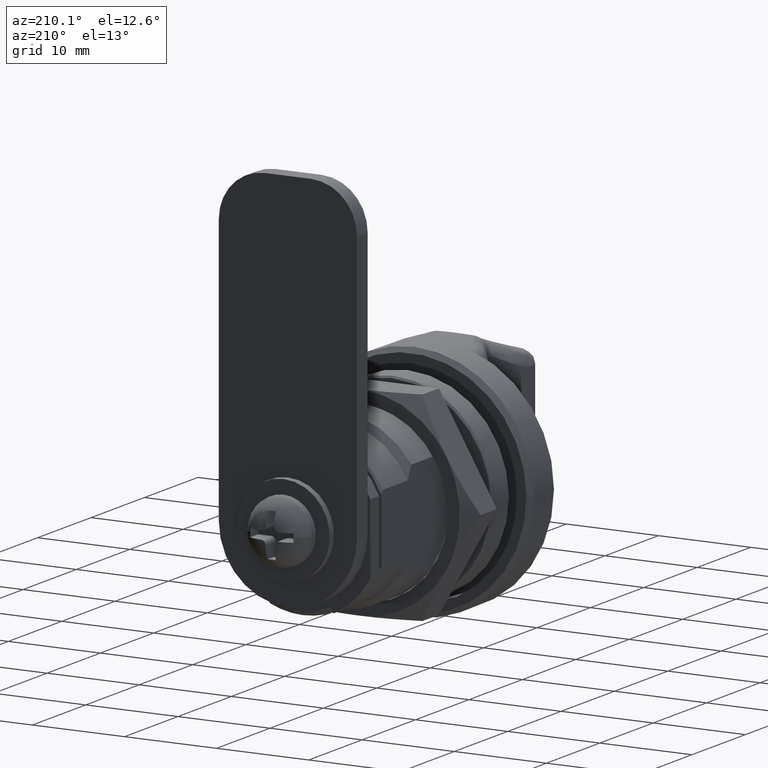
[diagram: clean part render]
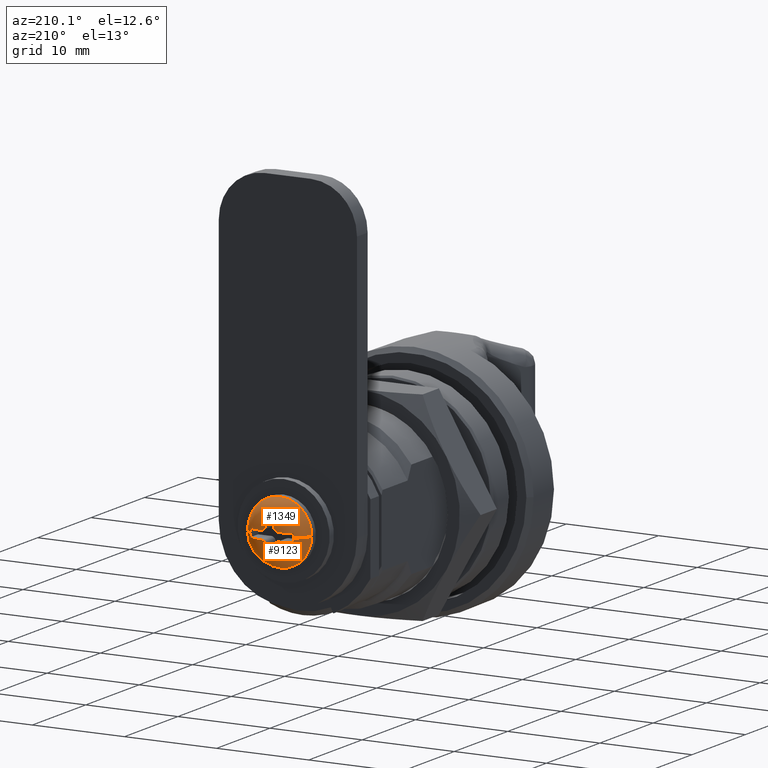
[diagram: same view with one multi-face feature highlighted, each face labeled with its STEP entity id]
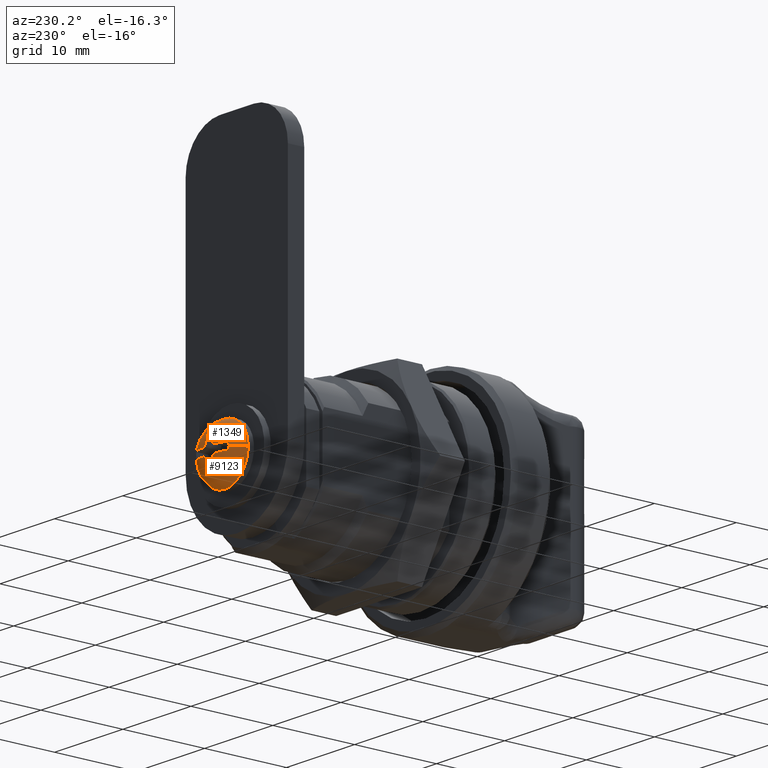
[diagram: same view with one multi-face feature highlighted, each face labeled with its STEP entity id]
A machine part, auxiliary view. The highlighted faces form ONE feature: a constant-radius fillet chain: 2 tangent blend faces with common blend radius 2.5 mm. The faces share edges in the B-rep.
A second angle (auxiliary view) of the same feature is appended — it is thin or edge-on in the first view.
Their STEP definitions:
[1] entity #9123 (Torus):
#134 = CARTESIAN_POINT ( 'NONE',  ( 1.198544420939724200, 0.4500000000000000700, 0.0003102923564185502600 ) ) ;
#171 = DIRECTION ( 'NONE',  ( 1.224646799147353000E-016, 1.000000000000000000, 0.0000000000000000000 ) ) ;
#323 = CARTESIAN_POINT ( 'NONE',  ( 0.6890411604601945900, 0.5038517649942705300, -0.0004133104139399162100 ) ) ;
#569 = VERTEX_POINT ( 'NONE', #1365 ) ;
#648 = CARTESIAN_POINT ( 'NONE',  ( -3.275548166263182900E-016, -2.350000000000000100, -0.3875072639931792000 ) ) ;
#666 = DIRECTION ( 'NONE',  ( 5.035679040476197800E-017, 5.035679040476199600E-017, 1.000000000000000000 ) ) ;
#747 = VERTEX_POINT ( 'NONE', #3799 ) ;
#756 = CARTESIAN_POINT ( 'NONE',  ( 1.445418951892949200, -0.4499999999999999600, -0.03546591441457390400 ) ) ;
#1057 = CARTESIAN_POINT ( 'NONE',  ( 0.2999999999992137300, -2.350000000000000100, -0.3965449638003455400 ) ) ;
#1069 = B_SPLINE_CURVE_WITH_KNOTS ( 'NONE', 3,
 ( #6649, #10116, #5852, #756, #6714, #1631 ),
 .UNSPECIFIED., .F., .F.,
 ( 4, 2, 4 ),
 ( 3.817813319659515900E-016, 0.0007357700134317409200, 0.001471540026863100200 ),
 .UNSPECIFIED. ) ;
#1135 = B_SPLINE_CURVE_WITH_KNOTS ( 'NONE', 3,
 ( #7890, #8764, #3642, #9617, #4491, #10460 ),
 .UNSPECIFIED., .F., .F.,
 ( 4, 2, 4 ),
 ( 1.763870203449307000E-018, 0.0007350184213802725100, 0.001470036842760543300 ),
 .UNSPECIFIED. ) ;
#1191 = CARTESIAN_POINT ( 'NONE',  ( 0.4499999999980001700, 0.8179649414887371100, 0.006602963583040439600 ) ) ;
#1229 = CARTESIAN_POINT ( 'NONE',  ( 0.9499999999960001600, 0.4500000000000001200, 0.004419836907807332700 ) ) ;
#1341 = B_SPLINE_CURVE_WITH_KNOTS ( 'NONE', 3,
 ( #10334, #134, #6949, #1856, #7804, #2695 ),
 .UNSPECIFIED., .F., .F.,
 ( 4, 2, 4 ),
 ( 1.212939646095947500E-018, 0.0007350184213826468100, 0.001470036842765292500 ),
 .UNSPECIFIED. ) ;
#1365 = CARTESIAN_POINT ( 'NONE',  ( 0.4499999999983314000, -2.350000000001230200, -0.4153617594514806800 ) ) ;
#1374 = CARTESIAN_POINT ( 'NONE',  ( 0.4499999999983314000, 2.350000000000000100, -0.4153617594533582400 ) ) ;
#1388 = CARTESIAN_POINT ( 'NONE',  ( 0.9499999999960001600, -0.4500000000000001200, 0.004419836907807221700 ) ) ;
#1397 = ORIENTED_EDGE ( 'NONE', *, *, #2833, .T. ) ;
#1527 = ORIENTED_EDGE ( 'NONE', *, *, #7171, .T. ) ;
#1629 = VERTEX_POINT ( 'NONE', #9063 ) ;
#1631 = CARTESIAN_POINT ( 'NONE',  ( 0.9499999999960001600, -0.4500000000000001200, 0.004419836907807221700 ) ) ;
#1633 = EDGE_CURVE ( 'NONE', #4300, #4436, #5981, .T. ) ;
#1635 = DIRECTION ( 'NONE',  ( -0.0000000000000000000, -0.0000000000000000000, -1.000000000000000000 ) ) ;
#1781 = B_SPLINE_CURVE_WITH_KNOTS ( 'NONE', 3,
 ( #3231, #8321, #2373, #4056 ),
 .UNSPECIFIED., .F., .F.,
 ( 4, 4 ),
 ( -0.0004508612568377294600, 0.0004508612568377303300 ),
 .UNSPECIFIED. ) ;
#1817 = EDGE_CURVE ( 'NONE', #10281, #3824, #10726, .T. ) ;
#1856 = CARTESIAN_POINT ( 'NONE',  ( 1.913598204264882900, 0.4499999999999999600, -0.1742830331836037700 ) ) ;
#1920 = CARTESIAN_POINT ( 'NONE',  ( 0.1499999999994384700, -2.350000000000000100, -0.3875072639931791400 ) ) ;
#1999 = B_SPLINE_CURVE_WITH_KNOTS ( 'NONE', 3,
 ( #6137, #1057, #1920, #7869 ),
 .UNSPECIFIED., .F., .F.,
 ( 4, 4 ),
 ( 3.314406041288187100E-016, 0.0004499999999986478800 ),
 .UNSPECIFIED. ) ;
#2066 = CARTESIAN_POINT ( 'NONE',  ( 0.4499999999983314000, 2.350000000000000100, -0.4153617594533582400 ) ) ;
#2205 = ORIENTED_EDGE ( 'NONE', *, *, #7359, .T. ) ;
#2210 = ORIENTED_EDGE ( 'NONE', *, *, #2947, .F. ) ;
#2373 = CARTESIAN_POINT ( 'NONE',  ( 2.350000000000000100, -0.1511709434611893400, -0.3778750575087248500 ) ) ;
#2560 = AXIS2_PLACEMENT_3D ( 'NONE', #6716, #1635, #7594 ) ;
#2695 = CARTESIAN_POINT ( 'NONE',  ( 2.350000000000000100, 0.4500000000000694000, -0.4153617594514506000 ) ) ;
#2831 = VERTEX_POINT ( 'NONE', #10428 ) ;
#2833 = EDGE_CURVE ( 'NONE', #4601, #569, #1135, .T. ) ;
#2942 = AXIS2_PLACEMENT_3D ( 'NONE', #3170, #9140, #4005 ) ;
#2947 = EDGE_CURVE ( 'NONE', #4211, #3824, #3105, .T. ) ;
#2948 = CARTESIAN_POINT ( 'NONE',  ( 0.5038517649901067500, -0.6890411604658804900, -0.0004133104138002091200 ) ) ;
#3058 = CARTESIAN_POINT ( 'NONE',  ( 2.350000000000000100, 0.4500000000000694000, -0.4153617594514506000 ) ) ;
#3105 = B_SPLINE_CURVE_WITH_KNOTS ( 'NONE', 3,
 ( #8829, #3709, #323, #6271, #1191, #7131 ),
 .UNSPECIFIED., .F., .F.,
 ( 4, 2, 4 ),
 ( -0.0004539696266263294100, -6.347624846904652600E-005, 0.0003270171296882363600 ),
 .UNSPECIFIED. ) ;
#3170 = CARTESIAN_POINT ( 'NONE',  ( -4.336808689942017700E-016, -1.005458397235167200, -2.495161855826608700 ) ) ;
#3231 = CARTESIAN_POINT ( 'NONE',  ( 2.350000000000000100, 0.4500000000000694000, -0.4153617594514506000 ) ) ;
#3642 = CARTESIAN_POINT ( 'NONE',  ( 0.4499999999980000000, -1.441259310622514000, -0.03473264641567096200 ) ) ;
#3687 = ORIENTED_EDGE ( 'NONE', *, *, #1817, .T. ) ;
#3709 = CARTESIAN_POINT ( 'NONE',  ( 0.8179623718848940700, 0.4500000000010561700, 0.006603006069772843600 ) ) ;
#3743 = CARTESIAN_POINT ( 'NONE',  ( 0.4499999999979998900, 2.141884629875827200, -0.2790247028624212600 ) ) ;
#3793 = CARTESIAN_POINT ( 'NONE',  ( 0.8179649414827329100, -0.4500000000010563900, 0.006602963582893623000 ) ) ;
#3799 = CARTESIAN_POINT ( 'NONE',  ( -3.976281882635874200E-017, 2.350000000000000100, -0.3875072639931794700 ) ) ;
#3802 = ORIENTED_EDGE ( 'NONE', *, *, #10342, .T. ) ;
#3824 = VERTEX_POINT ( 'NONE', #6442 ) ;
#3993 = DIRECTION ( 'NONE',  ( -0.0000000000000000000, -0.0000000000000000000, -1.000000000000000000 ) ) ;
#4005 = DIRECTION ( 'NONE',  ( 5.035679040476197800E-017, 0.0000000000000000000, 1.000000000000000000 ) ) ;
#4056 = CARTESIAN_POINT ( 'NONE',  ( 2.350000000000000100, -0.4500000000000695700, -0.4153617594514508700 ) ) ;
#4211 = VERTEX_POINT ( 'NONE', #1229 ) ;
#4287 = FACE_OUTER_BOUND ( 'NONE', #8326, .T. ) ;
#4300 = VERTEX_POINT ( 'NONE', #10815 ) ;
#4436 = VERTEX_POINT ( 'NONE', #648 ) ;
#4491 = CARTESIAN_POINT ( 'NONE',  ( 0.4499999999980000600, -2.141736367094630600, -0.2789275754317184800 ) ) ;
#4594 = CARTESIAN_POINT ( 'NONE',  ( 0.4499999999980000000, 1.445418951897176700, -0.03546591441536219000 ) ) ;
#4601 = VERTEX_POINT ( 'NONE', #10128 ) ;
#4750 = CARTESIAN_POINT ( 'NONE',  ( -3.976281882635874200E-017, 2.350000000000000100, -0.3875072639931794700 ) ) ;
#4997 = VERTEX_POINT ( 'NONE', #1388 ) ;
#5015 = CIRCLE ( 'NONE', #2560, 3.441774609300126000 ) ;
#5266 = DIRECTION ( 'NONE',  ( 1.000000000000000000, -1.224646799147353200E-016, -5.035679040476197200E-017 ) ) ;
#5371 = ORIENTED_EDGE ( 'NONE', *, *, #8641, .T. ) ;
#5463 = CARTESIAN_POINT ( 'NONE',  ( 0.4499999999980000600, 0.9500000000020000200, 0.004419836907725466700 ) ) ;
#5604 = CARTESIAN_POINT ( 'NONE',  ( 0.1499999999994386700, 2.350000000000000100, -0.3875072639931794200 ) ) ;
#5678 = CIRCLE ( 'NONE', #8608, 2.500000000008393300 ) ;
#5852 = CARTESIAN_POINT ( 'NONE',  ( 1.919071658425895300, -0.4500000000000001200, -0.1764060006515608100 ) ) ;
#5969 = EDGE_CURVE ( 'NONE', #9302, #7480, #1781, .T. ) ;
#5981 = CIRCLE ( 'NONE', #2942, 2.500000000008393300 ) ;
#6098 = ORIENTED_EDGE ( 'NONE', *, *, #5969, .T. ) ;
#6137 = CARTESIAN_POINT ( 'NONE',  ( 0.4499999999983314000, -2.350000000001230200, -0.4153617594514806800 ) ) ;
#6271 = CARTESIAN_POINT ( 'NONE',  ( 0.5038509382282344600, 0.6890425739443231100, -0.0004132675160671027700 ) ) ;
#6320 = CARTESIAN_POINT ( 'NONE',  ( 0.4499999999980000000, -0.8179623718908957100, 0.006603006069920014900 ) ) ;
#6436 = B_SPLINE_CURVE_WITH_KNOTS ( 'NONE', 3,
 ( #7151, #6320, #2948, #8922, #3793, #9765 ),
 .UNSPECIFIED., .F., .F.,
 ( 4, 2, 4 ),
 ( -0.0004539696266318155300, -6.347624847452532500E-005, 0.0003270171296827648800 ),
 .UNSPECIFIED. ) ;
#6442 = CARTESIAN_POINT ( 'NONE',  ( 0.4499999999980000600, 0.9500000000020000200, 0.004419836907725466700 ) ) ;
#6460 = CARTESIAN_POINT ( 'NONE',  ( 0.2999999999992136700, 2.350000000000000100, -0.3965449638003452100 ) ) ;
#6524 = AXIS2_PLACEMENT_3D ( 'NONE', #7453, #666, #6637 ) ;
#6536 = EDGE_CURVE ( 'NONE', #2831, #4300, #5015, .T. ) ;
#6637 = DIRECTION ( 'NONE',  ( 2.535806339869128900E-033, -1.000000000000000000, 5.035679040476199600E-017 ) ) ;
#6649 = CARTESIAN_POINT ( 'NONE',  ( 2.350000000000000100, -0.4500000000000695700, -0.4153617594514508700 ) ) ;
#6714 = CARTESIAN_POINT ( 'NONE',  ( 1.198528212190314900, -0.4500000000000001200, 0.0003105603591263959700 ) ) ;
#6716 = CARTESIAN_POINT ( 'NONE',  ( -5.329623038966008900E-016, -8.551766948607017900E-016, -1.934480738940000100 ) ) ;
#6949 = CARTESIAN_POINT ( 'NONE',  ( 1.441259310618173700, 0.4500000000000001200, -0.03473264641487422400 ) ) ;
#7087 = B_SPLINE_CURVE_WITH_KNOTS ( 'NONE', 3,
 ( #4750, #5604, #6460, #1374 ),
 .UNSPECIFIED., .F., .F.,
 ( 4, 4 ),
 ( 0.0004500000000026160600, 0.0009000000000009322800 ),
 .UNSPECIFIED. ) ;
#7131 = CARTESIAN_POINT ( 'NONE',  ( 0.4499999999980000600, 0.9500000000020000200, 0.004419836907725466700 ) ) ;
#7151 = CARTESIAN_POINT ( 'NONE',  ( 0.4499999999980000600, -0.9500000000020002400, 0.004419836907720438600 ) ) ;
#7171 = EDGE_CURVE ( 'NONE', #569, #4436, #1999, .T. ) ;
#7359 = EDGE_CURVE ( 'NONE', #747, #10281, #7087, .T. ) ;
#7453 = CARTESIAN_POINT ( 'NONE',  ( -4.336808689942017700E-016, -1.152615497714997500E-016, -2.495161855826608700 ) ) ;
#7480 = VERTEX_POINT ( 'NONE', #10167 ) ;
#7594 = DIRECTION ( 'NONE',  ( -1.000000000000000000, 0.0000000000000000000, 0.0000000000000000000 ) ) ;
#7804 = CARTESIAN_POINT ( 'NONE',  ( 2.141736367091888300, 0.4500000000000001200, -0.2789275754304164100 ) ) ;
#7869 = CARTESIAN_POINT ( 'NONE',  ( -3.275548166263182900E-016, -2.350000000000000100, -0.3875072639931792000 ) ) ;
#7890 = CARTESIAN_POINT ( 'NONE',  ( 0.4499999999980000600, -0.9500000000020002400, 0.004419836907720438600 ) ) ;
#8067 = ORIENTED_EDGE ( 'NONE', *, *, #8972, .F. ) ;
#8172 = EDGE_CURVE ( 'NONE', #1629, #747, #5678, .T. ) ;
#8275 = AXIS2_PLACEMENT_3D ( 'NONE', #9116, #3993, #9970 ) ;
#8321 = CARTESIAN_POINT ( 'NONE',  ( 2.350000000000000100, 0.1511709434611888900, -0.3778750575087243500 ) ) ;
#8326 = EDGE_LOOP ( 'NONE', ( #10838, #10531, #2205, #3687, #2210, #5371, #6098, #3802, #8067, #1397, #1527, #8795, #8773 ) ) ;
#8369 = CARTESIAN_POINT ( 'NONE',  ( 0.4499999999983314000, 2.350000000000000100, -0.4153617594533582400 ) ) ;
#8608 = AXIS2_PLACEMENT_3D ( 'NONE', #10379, #5266, #171 ) ;
#8641 = EDGE_CURVE ( 'NONE', #4211, #9302, #1341, .T. ) ;
#8764 = CARTESIAN_POINT ( 'NONE',  ( 0.4499999999979998900, -1.198544420944910100, 0.0003102923559299274500 ) ) ;
#8773 = ORIENTED_EDGE ( 'NONE', *, *, #6536, .F. ) ;
#8795 = ORIENTED_EDGE ( 'NONE', *, *, #1633, .F. ) ;
#8829 = CARTESIAN_POINT ( 'NONE',  ( 0.9499999999960001600, 0.4500000000000001200, 0.004419836907807332700 ) ) ;
#8922 = CARTESIAN_POINT ( 'NONE',  ( 0.6890425739386739600, -0.5038509382323611600, -0.0004132675162070326200 ) ) ;
#8972 = EDGE_CURVE ( 'NONE', #4601, #4997, #6436, .T. ) ;
#9063 = CARTESIAN_POINT ( 'NONE',  ( 1.604905835984823000E-017, 3.441774609304045600, -1.934480738940000100 ) ) ;
#9116 = CARTESIAN_POINT ( 'NONE',  ( -5.329623038966008900E-016, -8.551766948607017900E-016, -1.934480738940000100 ) ) ;
#9123 = ADVANCED_FACE ( 'NONE', ( #4287 ), #10293, .T. ) ;
#9140 = DIRECTION ( 'NONE',  ( -1.000000000000000000, 2.535806339869128900E-033, 5.035679040476197800E-017 ) ) ;
#9302 = VERTEX_POINT ( 'NONE', #3058 ) ;
#9617 = CARTESIAN_POINT ( 'NONE',  ( 0.4499999999980000000, -1.913598204267504600, -0.1742830331845472400 ) ) ;
#9716 = CARTESIAN_POINT ( 'NONE',  ( 0.4499999999980000000, 1.919071658428270800, -0.1764060006524183200 ) ) ;
#9765 = CARTESIAN_POINT ( 'NONE',  ( 0.9499999999960001600, -0.4500000000000001200, 0.004419836907807221700 ) ) ;
#9807 = CIRCLE ( 'NONE', #8275, 3.441774609300126000 ) ;
#9970 = DIRECTION ( 'NONE',  ( -1.000000000000000000, 0.0000000000000000000, 0.0000000000000000000 ) ) ;
#10116 = CARTESIAN_POINT ( 'NONE',  ( 2.141884629873041000, -0.4500000000000000700, -0.2790247028610909300 ) ) ;
#10128 = CARTESIAN_POINT ( 'NONE',  ( 0.4499999999980000600, -0.9500000000020002400, 0.004419836907720438600 ) ) ;
#10167 = CARTESIAN_POINT ( 'NONE',  ( 2.350000000000000100, -0.4500000000000695700, -0.4153617594514508700 ) ) ;
#10184 = EDGE_CURVE ( 'NONE', #1629, #2831, #9807, .T. ) ;
#10281 = VERTEX_POINT ( 'NONE', #8369 ) ;
#10293 = TOROIDAL_SURFACE ( 'NONE', #6524, 1.005458397235166900, 2.500000000008393300 ) ;
#10334 = CARTESIAN_POINT ( 'NONE',  ( 0.9499999999960001600, 0.4500000000000001200, 0.004419836907807332700 ) ) ;
#10342 = EDGE_CURVE ( 'NONE', #7480, #4997, #1069, .T. ) ;
#10379 = CARTESIAN_POINT ( 'NONE',  ( -3.105477282092142100E-016, 1.005458397235166700, -2.495161855826608700 ) ) ;
#10428 = CARTESIAN_POINT ( 'NONE',  ( 3.441774609300125100, -4.301155920766133000E-016, -1.934480738940000100 ) ) ;
#10460 = CARTESIAN_POINT ( 'NONE',  ( 0.4499999999983314000, -2.350000000001230200, -0.4153617594514806800 ) ) ;
#10531 = ORIENTED_EDGE ( 'NONE', *, *, #8172, .T. ) ;
#10568 = CARTESIAN_POINT ( 'NONE',  ( 0.4499999999980000600, 1.198528212195442800, 0.0003105603586388446800 ) ) ;
#10726 = B_SPLINE_CURVE_WITH_KNOTS ( 'NONE', 3,
 ( #2066, #3743, #9716, #4594, #10568, #5463 ),
 .UNSPECIFIED., .F., .F.,
 ( 4, 2, 4 ),
 ( 1.810026694184179100E-015, 0.0007357700134305900400, 0.001471540026859369900 ),
 .UNSPECIFIED. ) ;
#10815 = CARTESIAN_POINT ( 'NONE',  ( -4.054467675072349400E-016, -3.441774609304046400, -1.934480738940000100 ) ) ;
#10838 = ORIENTED_EDGE ( 'NONE', *, *, #10184, .F. ) ;
[2] entity #1349 (Torus):
#50 = CARTESIAN_POINT ( 'NONE',  ( -3.976281882635874200E-017, 2.350000000000000100, -0.3875072639931794700 ) ) ;
#171 = DIRECTION ( 'NONE',  ( 1.224646799147353000E-016, 1.000000000000000000, 0.0000000000000000000 ) ) ;
#175 = EDGE_CURVE ( 'NONE', #6860, #6688, #9032, .T. ) ;
#194 = CARTESIAN_POINT ( 'NONE',  ( -0.9500000000000002900, 0.4500000000000001200, 0.004419836907748263600 ) ) ;
#280 = CARTESIAN_POINT ( 'NONE',  ( -2.350000000000945600, 0.4500000000002549700, -0.4153617594515361900 ) ) ;
#548 = DIRECTION ( 'NONE',  ( -0.0000000000000000000, -0.0000000000000000000, -1.000000000000000000 ) ) ;
#621 = CARTESIAN_POINT ( 'NONE',  ( -1.913598204266670800, -0.4499999999999999600, -0.1742830331843758000 ) ) ;
#648 = CARTESIAN_POINT ( 'NONE',  ( -3.275548166263182900E-016, -2.350000000000000100, -0.3875072639931792000 ) ) ;
#700 = CARTESIAN_POINT ( 'NONE',  ( -0.9500000000000002900, 0.4500000000000001200, 0.004419836907748263600 ) ) ;
#706 = VERTEX_POINT ( 'NONE', #10521 ) ;
#747 = VERTEX_POINT ( 'NONE', #3799 ) ;
#773 = ORIENTED_EDGE ( 'NONE', *, *, #10192, .F. ) ;
#1017 = CARTESIAN_POINT ( 'NONE',  ( -2.141884629874940800, 0.4500000000000000700, -0.2790247028621408700 ) ) ;
#1044 = CARTESIAN_POINT ( 'NONE',  ( -2.350000000000944700, -0.4500000000002546400, -0.4153617594515344700 ) ) ;
#1051 = CARTESIAN_POINT ( 'NONE',  ( -0.4500000000020000800, 2.141736367094415200, -0.2789275754320482100 ) ) ;
#1094 = CARTESIAN_POINT ( 'NONE',  ( -0.1500000000007721000, -2.350000000000000100, -0.3875072639931791400 ) ) ;
#1349 = ADVANCED_FACE ( 'NONE', ( #2085 ), #5513, .T. ) ;
#1364 = CARTESIAN_POINT ( 'NONE',  ( -0.4500000000023003400, -2.350000000000000100, -0.4153617594536053200 ) ) ;
#1448 = EDGE_CURVE ( 'NONE', #4436, #6854, #4910, .T. ) ;
#1472 = CARTESIAN_POINT ( 'NONE',  ( -0.5038509382307064800, -0.6890425739434965500, -0.0004132675160203420000 ) ) ;
#1473 = CARTESIAN_POINT ( 'NONE',  ( -2.350000000000000100, -0.1511709434614363100, -0.3778750575087229100 ) ) ;
#1489 = CARTESIAN_POINT ( 'NONE',  ( -2.350000000000944700, -0.4500000000002546400, -0.4153617594515344700 ) ) ;
#1629 = VERTEX_POINT ( 'NONE', #9063 ) ;
#1633 = EDGE_CURVE ( 'NONE', #4300, #4436, #5981, .T. ) ;
#1801 = ORIENTED_EDGE ( 'NONE', *, *, #175, .T. ) ;
#1898 = DIRECTION ( 'NONE',  ( 2.535806339869128900E-033, -1.000000000000000000, 5.035679040476199600E-017 ) ) ;
#1992 = CARTESIAN_POINT ( 'NONE',  ( -3.441774609300126000, -8.551766948607017900E-016, -1.934480738940000100 ) ) ;
#2012 = CARTESIAN_POINT ( 'NONE',  ( -3.275548166263182900E-016, -2.350000000000000100, -0.3875072639931792000 ) ) ;
#2043 = EDGE_CURVE ( 'NONE', #4300, #2886, #8662, .T. ) ;
#2085 = FACE_OUTER_BOUND ( 'NONE', #5958, .T. ) ;
#2231 = CARTESIAN_POINT ( 'NONE',  ( -0.4500000000020000800, -2.141884629875608200, -0.2790247028627488300 ) ) ;
#2277 = ORIENTED_EDGE ( 'NONE', *, *, #5435, .F. ) ;
#2334 = CARTESIAN_POINT ( 'NONE',  ( -0.4500000000020000200, -0.9500000000019917000, 0.004419836907699753800 ) ) ;
#2543 = CARTESIAN_POINT ( 'NONE',  ( -0.4500000000023003900, 2.350000000001115200, -0.4153617594519033500 ) ) ;
#2731 = ORIENTED_EDGE ( 'NONE', *, *, #4464, .T. ) ;
#2764 = CARTESIAN_POINT ( 'NONE',  ( -0.4500000000020000200, 0.9500000000020004700, 0.004419836907699701800 ) ) ;
#2781 = VERTEX_POINT ( 'NONE', #9582 ) ;
#2844 = CARTESIAN_POINT ( 'NONE',  ( -0.4500000000023003400, -2.350000000000000100, -0.4153617594536053200 ) ) ;
#2872 = B_SPLINE_CURVE_WITH_KNOTS ( 'NONE', 3,
 ( #1364, #2231, #9896, #4775, #10763, #5628 ),
 .UNSPECIFIED., .F., .F.,
 ( 4, 2, 4 ),
 ( 1.640690563201215600E-015, 0.0007357700134304279500, 0.001471540026859215100 ),
 .UNSPECIFIED. ) ;
#2886 = VERTEX_POINT ( 'NONE', #1992 ) ;
#2942 = AXIS2_PLACEMENT_3D ( 'NONE', #3170, #9140, #4005 ) ;
#3147 = CARTESIAN_POINT ( 'NONE',  ( -0.8179623718885689100, -0.4499999999999997900, 0.006603006069894886600 ) ) ;
#3170 = CARTESIAN_POINT ( 'NONE',  ( -4.336808689942017700E-016, -1.005458397235167200, -2.495161855826608700 ) ) ;
#3171 = CARTESIAN_POINT ( 'NONE',  ( -1.198544420943197900, -0.4500000000000000700, 0.0003102923560331659400 ) ) ;
#3250 = EDGE_CURVE ( 'NONE', #2886, #1629, #9134, .T. ) ;
#3557 = CARTESIAN_POINT ( 'NONE',  ( -4.336808689942017700E-016, -1.152615497714997500E-016, -2.495161855826608700 ) ) ;
#3779 = VERTEX_POINT ( 'NONE', #4730 ) ;
#3799 = CARTESIAN_POINT ( 'NONE',  ( -3.976281882635874200E-017, 2.350000000000000100, -0.3875072639931794700 ) ) ;
#3925 = CARTESIAN_POINT ( 'NONE',  ( -5.329623038966008900E-016, -8.551766948607017900E-016, -1.934480738940000100 ) ) ;
#3939 = B_SPLINE_CURVE_WITH_KNOTS ( 'NONE', 3,
 ( #5251, #1017, #4420, #10406, #5292, #194 ),
 .UNSPECIFIED., .F., .F.,
 ( 4, 2, 4 ),
 ( 1.101353171582529400E-015, 0.0007357700134309233200, 0.001471540026860745300 ),
 .UNSPECIFIED. ) ;
#4005 = DIRECTION ( 'NONE',  ( 5.035679040476197800E-017, 0.0000000000000000000, 1.000000000000000000 ) ) ;
#4095 = CARTESIAN_POINT ( 'NONE',  ( -0.4500000000020000200, 0.9500000000020004700, 0.004419836907699701800 ) ) ;
#4136 = CARTESIAN_POINT ( 'NONE',  ( -0.4500000000023003400, -2.350000000000000100, -0.4153617594536053200 ) ) ;
#4297 = EDGE_CURVE ( 'NONE', #6854, #706, #2872, .T. ) ;
#4300 = VERTEX_POINT ( 'NONE', #10815 ) ;
#4397 = ORIENTED_EDGE ( 'NONE', *, *, #3250, .F. ) ;
#4420 = CARTESIAN_POINT ( 'NONE',  ( -1.919071658427689700, 0.4500000000000001200, -0.1764060006523407700 ) ) ;
#4436 = VERTEX_POINT ( 'NONE', #648 ) ;
#4464 = EDGE_CURVE ( 'NONE', #10865, #8303, #6004, .T. ) ;
#4559 = ORIENTED_EDGE ( 'NONE', *, *, #4297, .T. ) ;
#4730 = CARTESIAN_POINT ( 'NONE',  ( -0.9500000000000002900, 0.4500000000000001200, 0.004419836907748263600 ) ) ;
#4775 = CARTESIAN_POINT ( 'NONE',  ( -0.4500000000019999700, -1.445418951897163000, -0.03546591441561379500 ) ) ;
#4778 = DIRECTION ( 'NONE',  ( -1.000000000000000000, 0.0000000000000000000, 0.0000000000000000000 ) ) ;
#4910 = B_SPLINE_CURVE_WITH_KNOTS ( 'NONE', 3,
 ( #2012, #1094, #7947, #2844 ),
 .UNSPECIFIED., .F., .F.,
 ( 4, 4 ),
 ( 0.0004499999999986478800, 0.0009000000000009631800 ),
 .UNSPECIFIED. ) ;
#4934 = CARTESIAN_POINT ( 'NONE',  ( -2.350000000000000100, 0.1511709434614370900, -0.3778750575087234700 ) ) ;
#4953 = CARTESIAN_POINT ( 'NONE',  ( -0.5038517649937567200, 0.6890411604662192200, -0.0004133104136457538400 ) ) ;
#5147 = CARTESIAN_POINT ( 'NONE',  ( -0.1500000000007719600, 2.350000000000000100, -0.3875072639931794200 ) ) ;
#5251 = CARTESIAN_POINT ( 'NONE',  ( -2.350000000000945600, 0.4500000000002549700, -0.4153617594515361900 ) ) ;
#5266 = DIRECTION ( 'NONE',  ( 1.000000000000000000, -1.224646799147353200E-016, -5.035679040476197200E-017 ) ) ;
#5288 = CARTESIAN_POINT ( 'NONE',  ( -0.4500000000020000800, 1.198544420944901000, 0.0003102923557516452000 ) ) ;
#5292 = CARTESIAN_POINT ( 'NONE',  ( -1.198528212193793500, 0.4500000000000001200, 0.0003105603587406817300 ) ) ;
#5355 = ORIENTED_EDGE ( 'NONE', *, *, #1633, .T. ) ;
#5435 = EDGE_CURVE ( 'NONE', #6860, #3779, #5861, .T. ) ;
#5513 = TOROIDAL_SURFACE ( 'NONE', #6217, 1.005458397235166900, 2.500000000008393300 ) ;
#5628 = CARTESIAN_POINT ( 'NONE',  ( -0.4500000000020000200, -0.9500000000019917000, 0.004419836907699753800 ) ) ;
#5635 = CARTESIAN_POINT ( 'NONE',  ( -5.329623038966008900E-016, -8.551766948607017900E-016, -1.934480738940000100 ) ) ;
#5678 = CIRCLE ( 'NONE', #8608, 2.500000000008393300 ) ;
#5702 = CARTESIAN_POINT ( 'NONE',  ( -2.350000000000944700, -0.4500000000002546400, -0.4153617594515344700 ) ) ;
#5719 = CARTESIAN_POINT ( 'NONE',  ( -1.441259310621094900, -0.4500000000000001200, -0.03473264641549355500 ) ) ;
#5805 = CARTESIAN_POINT ( 'NONE',  ( -0.8179649414866888600, 0.4500000000010563300, 0.006602963583002610500 ) ) ;
#5847 = CARTESIAN_POINT ( 'NONE',  ( -0.4500000000020000200, 0.9500000000020004700, 0.004419836907699701800 ) ) ;
#5861 = B_SPLINE_CURVE_WITH_KNOTS ( 'NONE', 3,
 ( #4095, #10070, #4953, #10940, #5805, #700 ),
 .UNSPECIFIED., .F., .F.,
 ( 4, 2, 4 ),
 ( -0.0004539696266162564200, -6.347624845884098500E-005, 0.0003270171296985744500 ),
 .UNSPECIFIED. ) ;
#5958 = EDGE_LOOP ( 'NONE', ( #10026, #4397, #10194, #5355, #10629, #4559, #773, #9562, #2731, #9721, #2277, #1801, #7222 ) ) ;
#5981 = CIRCLE ( 'NONE', #2942, 2.500000000008393300 ) ;
#6004 = B_SPLINE_CURVE_WITH_KNOTS ( 'NONE', 3,
 ( #5702, #1473, #4934, #7436 ),
 .UNSPECIFIED., .F., .F.,
 ( 4, 4 ),
 ( -0.0004508612568379195800, 0.0004508612568379205500 ),
 .UNSPECIFIED. ) ;
#6130 = CARTESIAN_POINT ( 'NONE',  ( -0.4500000000020001300, 1.441259310622488200, -0.03473264641592037300 ) ) ;
#6217 = AXIS2_PLACEMENT_3D ( 'NONE', #3557, #6987, #1898 ) ;
#6403 = CARTESIAN_POINT ( 'NONE',  ( -0.9500000000000006200, -0.4500000000000000100, 0.004419836907748419700 ) ) ;
#6499 = DIRECTION ( 'NONE',  ( -1.000000000000000000, 0.0000000000000000000, 0.0000000000000000000 ) ) ;
#6564 = CARTESIAN_POINT ( 'NONE',  ( -0.6890411604634226700, -0.5038517649927102300, -0.0004133104138344949500 ) ) ;
#6585 = CARTESIAN_POINT ( 'NONE',  ( -2.141736367093793400, -0.4500000000000001200, -0.2789275754314699500 ) ) ;
#6688 = VERTEX_POINT ( 'NONE', #8022 ) ;
#6854 = VERTEX_POINT ( 'NONE', #4136 ) ;
#6860 = VERTEX_POINT ( 'NONE', #5847 ) ;
#6987 = DIRECTION ( 'NONE',  ( 5.035679040476197800E-017, 5.035679040476199600E-017, 1.000000000000000000 ) ) ;
#7008 = CARTESIAN_POINT ( 'NONE',  ( -0.4500000000019999700, 1.913598204267413800, -0.1742830331848982100 ) ) ;
#7011 = B_SPLINE_CURVE_WITH_KNOTS ( 'NONE', 3,
 ( #6403, #3147, #6564, #1472, #7423, #2334 ),
 .UNSPECIFIED., .F., .F.,
 ( 4, 2, 4 ),
 ( -0.0004539696266223496300, -6.347624846409389000E-005, 0.0003270171296941618500 ),
 .UNSPECIFIED. ) ;
#7018 = EDGE_CURVE ( 'NONE', #6688, #747, #7911, .T. ) ;
#7149 = EDGE_CURVE ( 'NONE', #8303, #3779, #3939, .T. ) ;
#7222 = ORIENTED_EDGE ( 'NONE', *, *, #7018, .T. ) ;
#7423 = CARTESIAN_POINT ( 'NONE',  ( -0.4500000000009460300, -0.8179649414883989300, 0.006602963583101028300 ) ) ;
#7436 = CARTESIAN_POINT ( 'NONE',  ( -2.350000000000945600, 0.4500000000002549700, -0.4153617594515361900 ) ) ;
#7693 = CARTESIAN_POINT ( 'NONE',  ( -0.4500000000023003900, 2.350000000001115200, -0.4153617594519033500 ) ) ;
#7911 = B_SPLINE_CURVE_WITH_KNOTS ( 'NONE', 3,
 ( #7693, #8553, #5147, #50 ),
 .UNSPECIFIED., .F., .F.,
 ( 4, 4 ),
 ( 3.004324219957332800E-016, 0.0004500000000026160600 ),
 .UNSPECIFIED. ) ;
#7947 = CARTESIAN_POINT ( 'NONE',  ( -0.3000000000018390700, -2.350000000000000100, -0.3965449638005014700 ) ) ;
#8022 = CARTESIAN_POINT ( 'NONE',  ( -0.4500000000023003900, 2.350000000001115200, -0.4153617594519033500 ) ) ;
#8172 = EDGE_CURVE ( 'NONE', #1629, #747, #5678, .T. ) ;
#8303 = VERTEX_POINT ( 'NONE', #280 ) ;
#8412 = AXIS2_PLACEMENT_3D ( 'NONE', #5635, #548, #6499 ) ;
#8553 = CARTESIAN_POINT ( 'NONE',  ( -0.3000000000018393000, 2.350000000000000100, -0.3965449638005016900 ) ) ;
#8608 = AXIS2_PLACEMENT_3D ( 'NONE', #10379, #5266, #171 ) ;
#8622 = B_SPLINE_CURVE_WITH_KNOTS ( 'NONE', 3,
 ( #9143, #3171, #5719, #621, #6585, #1489 ),
 .UNSPECIFIED., .F., .F.,
 ( 4, 2, 4 ),
 ( 0.0000000000000000000, 0.0007350184213811109300, 0.001470036842762221900 ),
 .UNSPECIFIED. ) ;
#8662 = CIRCLE ( 'NONE', #10515, 3.441774609300126000 ) ;
#9032 = B_SPLINE_CURVE_WITH_KNOTS ( 'NONE', 3,
 ( #2764, #5288, #6130, #7008, #1051, #2543 ),
 .UNSPECIFIED., .F., .F.,
 ( 4, 2, 4 ),
 ( 0.0000000000000000000, 0.0007350184213802482300, 0.001470036842760496500 ),
 .UNSPECIFIED. ) ;
#9063 = CARTESIAN_POINT ( 'NONE',  ( 1.604905835984823000E-017, 3.441774609304045600, -1.934480738940000100 ) ) ;
#9134 = CIRCLE ( 'NONE', #8412, 3.441774609300126000 ) ;
#9140 = DIRECTION ( 'NONE',  ( -1.000000000000000000, 2.535806339869128900E-033, 5.035679040476197800E-017 ) ) ;
#9143 = CARTESIAN_POINT ( 'NONE',  ( -0.9500000000000006200, -0.4500000000000000100, 0.004419836907748419700 ) ) ;
#9562 = ORIENTED_EDGE ( 'NONE', *, *, #10774, .T. ) ;
#9582 = CARTESIAN_POINT ( 'NONE',  ( -0.9500000000000006200, -0.4500000000000000100, 0.004419836907748419700 ) ) ;
#9721 = ORIENTED_EDGE ( 'NONE', *, *, #7149, .T. ) ;
#9896 = CARTESIAN_POINT ( 'NONE',  ( -0.4500000000020001300, -1.919071658428218600, -0.1764060006527848300 ) ) ;
#9898 = DIRECTION ( 'NONE',  ( -0.0000000000000000000, -0.0000000000000000000, -1.000000000000000000 ) ) ;
#10026 = ORIENTED_EDGE ( 'NONE', *, *, #8172, .F. ) ;
#10070 = CARTESIAN_POINT ( 'NONE',  ( -0.4500000000020000800, 0.8179623718908545200, 0.006603006069967725900 ) ) ;
#10192 = EDGE_CURVE ( 'NONE', #2781, #706, #7011, .T. ) ;
#10194 = ORIENTED_EDGE ( 'NONE', *, *, #2043, .F. ) ;
#10379 = CARTESIAN_POINT ( 'NONE',  ( -3.105477282092142100E-016, 1.005458397235166700, -2.495161855826608700 ) ) ;
#10406 = CARTESIAN_POINT ( 'NONE',  ( -1.445418951895884900, 0.4499999999999999600, -0.03546591441520128400 ) ) ;
#10515 = AXIS2_PLACEMENT_3D ( 'NONE', #3925, #9898, #4778 ) ;
#10521 = CARTESIAN_POINT ( 'NONE',  ( -0.4500000000020000200, -0.9500000000019917000, 0.004419836907699753800 ) ) ;
#10629 = ORIENTED_EDGE ( 'NONE', *, *, #1448, .T. ) ;
#10763 = CARTESIAN_POINT ( 'NONE',  ( -0.4500000000020000800, -1.198528212195431900, 0.0003105603584612243900 ) ) ;
#10774 = EDGE_CURVE ( 'NONE', #2781, #10865, #8622, .T. ) ;
#10815 = CARTESIAN_POINT ( 'NONE',  ( -4.054467675072349400E-016, -3.441774609304046400, -1.934480738940000100 ) ) ;
#10865 = VERTEX_POINT ( 'NONE', #1044 ) ;
#10940 = CARTESIAN_POINT ( 'NONE',  ( -0.6890425739430670000, 0.5038509382319800200, -0.0004132675159939320800 ) ) ;